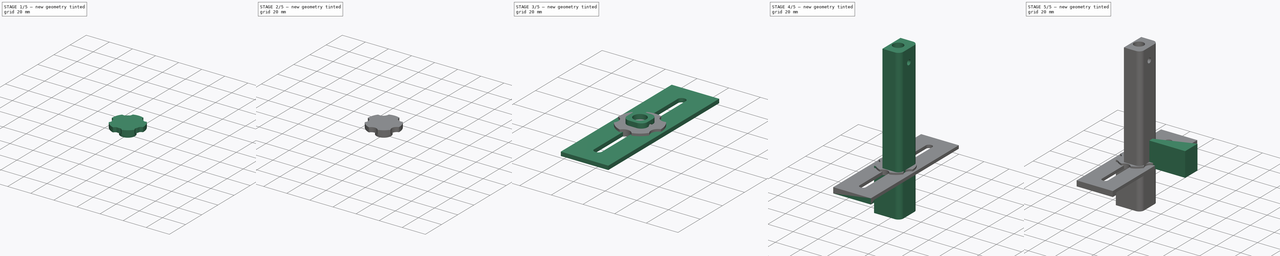
[diagram: build sequence overview — one tinted view per stage of 5, left to right]
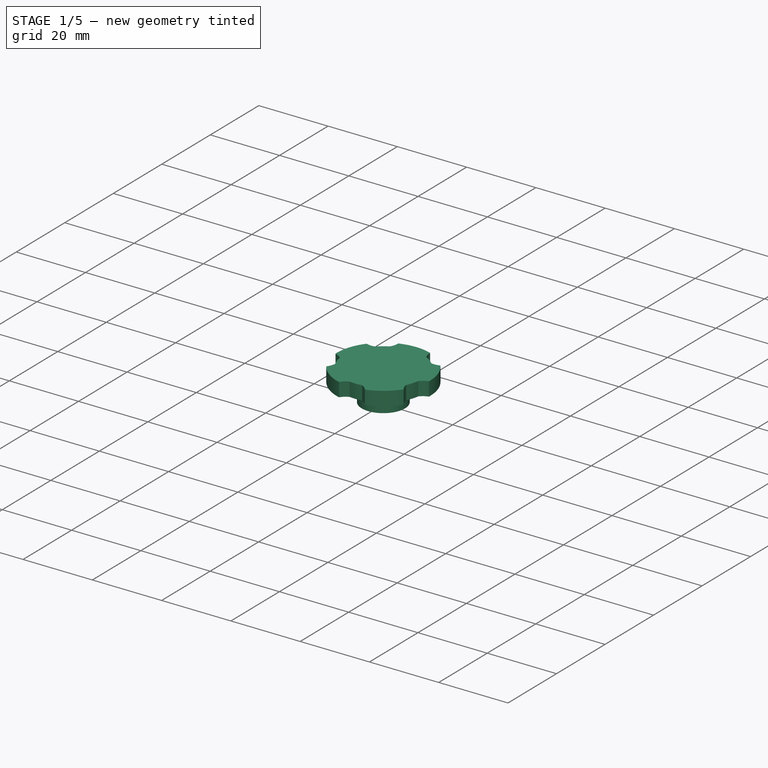
[diagram: stage 1 of 5 — iso view after this stage's code; geometry added in this stage tinted green]
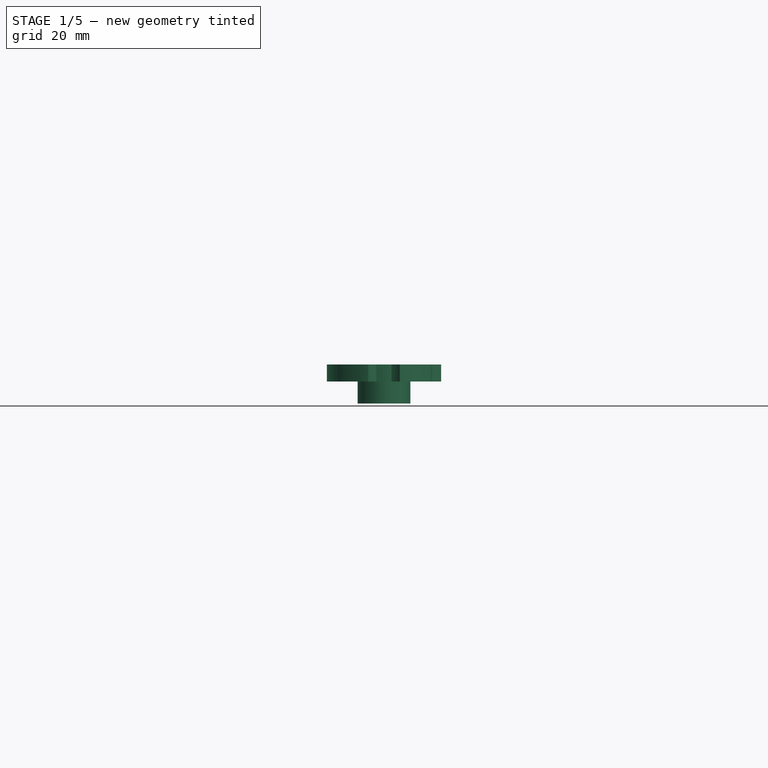
[diagram: stage 1 of 5 — front view after this stage's code; geometry added in this stage tinted green]
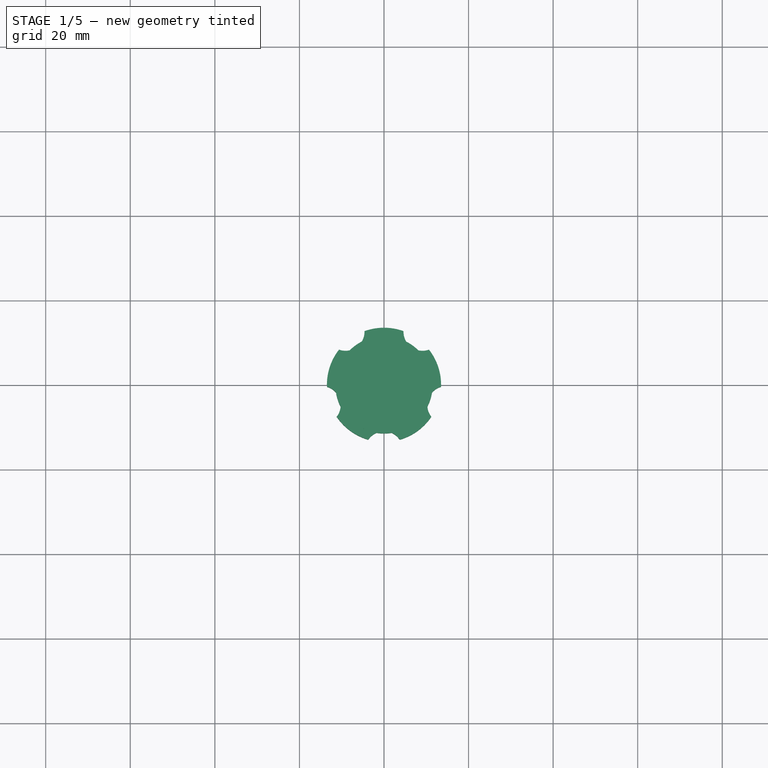
[diagram: stage 1 of 5 — top view after this stage's code; geometry added in this stage tinted green]
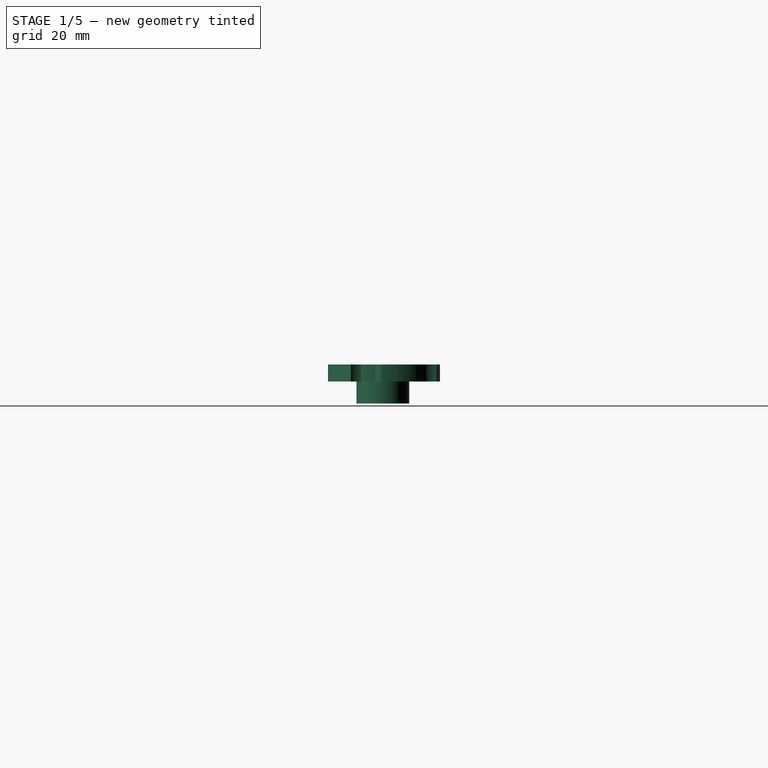
[diagram: stage 1 of 5 — right view after this stage's code; geometry added in this stage tinted green]
FCSTD DOCUMENT  (FreeCAD 1.0R39285 (Git))
Label: Parts
License: All rights reserved
LicenseURL: https://en.wikipedia.org/wiki/All_rights_reserved
objects: Sketcher::SketchObject×27, PartDesign::Pad×16, PartDesign::Pocket×11, PartDesign::Body×9, App::Part×9, PartDesign::PolarPattern×3, PartDesign::Fillet×1
note: 153 computed .brp shape members not serialized (recipe doc carries the construction recipe); baked Part::Feature solids carry a one-line shape summary decoded from their .brp

FEATURE [PartDesign::Body] Body006  label="3mmKnobBody"
  AllowCompound = false
  Group = -> [Sketch015,Pad010,Sketch016,Pad011,Sketch017,Pocket005,Sketch018,Pocket006,PolarPattern]
  Origin = -> Origin013
  Tip = -> PolarPattern
FEATURE [App::Part] Part006  label="3mmKnobPart"
  Group = -> [Body006]
  Origin = -> Origin012
FEATURE [Sketcher::SketchObject] Sketch019
  ArcFitTolerance = 1e-06
  AttachmentSupport = -> [XY_Plane015]
  FullyConstrained = true
  MakeInternals = false
  MapMode = 5
  sketch-geometry (1):
    g0: Circle CenterX=0 CenterY=0 CenterZ=0 NormalX=0 NormalY=0 NormalZ=1 AngleXU=0 Radius=11.5
  constraints (2):
    c: Diameter(g0) = 23
    c: Coincident(g0,g-1)
FEATURE [PartDesign::Pad] Pad012  label="MainPad005"
  Direction = (0,0,1)
  Length = 4
  Length2 = 10
  Profile = -> Sketch019
  ReferenceAxis = -> Sketch019 [N_Axis]
  Refine = true
  Suppressed = false
  Type = 0
FEATURE [PartDesign::Body] Body007  label="4mmKnobBody"
  AllowCompound = false
  Group = -> [Sketch019,Pad012,Sketch020,Pad013,Sketch021,Pocket007,Sketch022,Pocket008,PolarPattern001]
  Origin = -> Origin015
  Tip = -> PolarPattern001
FEATURE [App::Part] Part007  label="4mmKnobPart"
  Group = -> [Body007]
  Origin = -> Origin014
FEATURE [Sketcher::SketchObject] Sketch023
  ArcFitTolerance = 1e-06
  AttachmentSupport = -> [XY_Plane017]
  FullyConstrained = true
  MakeInternals = false
  MapMode = 5
  sketch-geometry (1):
    g0: Circle CenterX=0 CenterY=0 CenterZ=0 NormalX=0 NormalY=0 NormalZ=1 AngleXU=0 Radius=13.5
  constraints (2):
    c: Diameter(g0) = 27
    c: Coincident(g0,g-1)
FEATURE [PartDesign::Pad] Pad014  label="MainPad006"
  Direction = (0,0,1)
  Length = 4
  Length2 = 10
  Profile = -> Sketch023
  ReferenceAxis = -> Sketch023 [N_Axis]
  Refine = true
  Suppressed = false
  Type = 0
FEATURE [Sketcher::SketchObject] Sketch024
  ArcFitTolerance = 1e-06
  AttachmentSupport = -> [Pad014]
  FullyConstrained = true
  MakeInternals = false
  MapMode = 5
  Placement = pos=(0,0,0) rot=(1,0,0;3.14159rad)
  sketch-geometry (1):
    g0: Circle CenterX=0 CenterY=0 CenterZ=0 NormalX=0 NormalY=0 NormalZ=1 AngleXU=0 Radius=6.245
  constraints (2):
    c: Diameter(g0) = 12.49
    c: Coincident(g0,g-1)
FEATURE [PartDesign::Pad] Pad015  label="ScrewPad002"
  BaseFeature = -> Pad014
  Direction = (0,0,-1)
  Length = 5.2
  Length2 = 10
  Profile = -> Sketch024
  ReferenceAxis = -> Sketch024 [N_Axis]
  Refine = true
  Suppressed = false
  Type = 0
FEATURE [Sketcher::SketchObject] Sketch025
  ArcFitTolerance = 1e-06
  AttachmentSupport = -> [Pad015]
  FullyConstrained = true
  MakeInternals = false
  MapMode = 5
  Placement = pos=(0,0,-5.2) rot=(1,0,0;3.14159rad)
  sketch-geometry (1):
    g0: Circle CenterX=0 CenterY=0 CenterZ=0 NormalX=0 NormalY=0 NormalZ=1 AngleXU=0 Radius=3.3
  constraints (2):
    c: Diameter(g0) = 6.6
    c: Coincident(g0,g-1)
FEATURE [PartDesign::Pocket] Pocket009  label="ScrewHeadPocket002"
  BaseFeature = -> Pad015
  Direction = (0,0,1)
  Length = 5.2
  Length2 = 5
  Profile = -> Sketch025
  ReferenceAxis = -> Sketch025 [N_Axis]
  Refine = true
  Suppressed = false
  Type = 0
FEATURE [Sketcher::SketchObject] Sketch026
  ArcFitTolerance = 1e-06
  AttachmentSupport = -> [Pocket009]
  FullyConstrained = true
  MakeInternals = false
  MapMode = 5
  Placement = pos=(0,0,0) rot=(1,0,0;3.14159rad)
  sketch-geometry (1):
    g0: Circle CenterX=0 CenterY=15.5 CenterZ=0 NormalX=0 NormalY=0 NormalZ=1 AngleXU=0 Radius=4.5
  constraints (3):
    c: Diameter(g0) = 9
    c: PointOnObject(g0,g-2)
    c: DistanceY(g-1,g0) = 15.5
FEATURE [PartDesign::Pocket] Pocket010  label="EdgePocket002"
  BaseFeature = -> Pocket009
  Direction = (0,0,1)
  Length = 5
  Length2 = 5
  Profile = -> Sketch026
  ReferenceAxis = -> Sketch026 [N_Axis]
  Refine = true
  Suppressed = false
  Type = 1
FEATURE [PartDesign::PolarPattern] PolarPattern002
  Angle = 360
  Axis = -> Sketch026 [N_Axis]
  BaseFeature = -> Pocket010
  Mode = 0
  Occurrences = 5
  Offset = 120
  Originals = -> [Pocket010]
  Refine = true
  Suppressed = false
  TransformMode = 0
FEATURE [PartDesign::Body] Body008  label="5mmKnobBody"
  AllowCompound = false
  Group = -> [Sketch023,Pad014,Sketch024,Pad015,Sketch025,Pocket009,Sketch026,Pocket010,PolarPattern002]
  Origin = -> Origin017
  Tip = -> PolarPattern002
FEATURE [App::Part] Part008  label="5mmKnobPart"
  Group = -> [Body008]
  Origin = -> Origin016
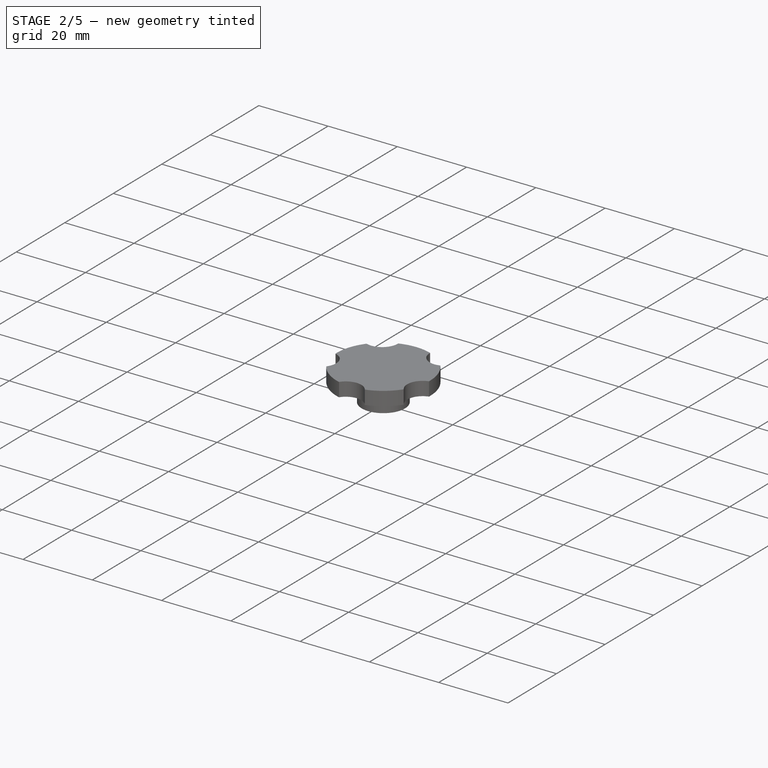
[diagram: stage 2 of 5 — iso view after this stage's code; geometry added in this stage tinted green]
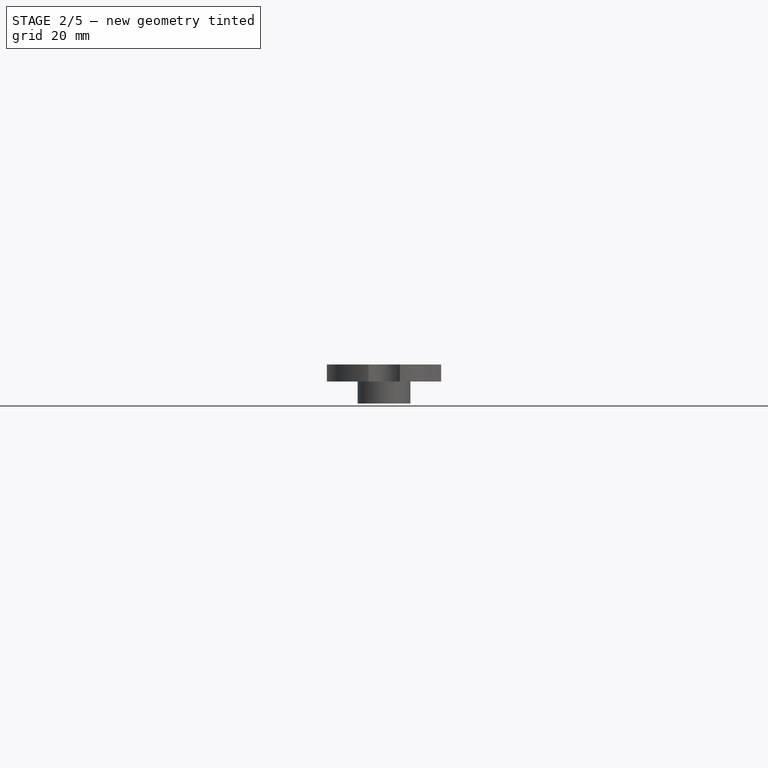
[diagram: stage 2 of 5 — front view after this stage's code; geometry added in this stage tinted green]
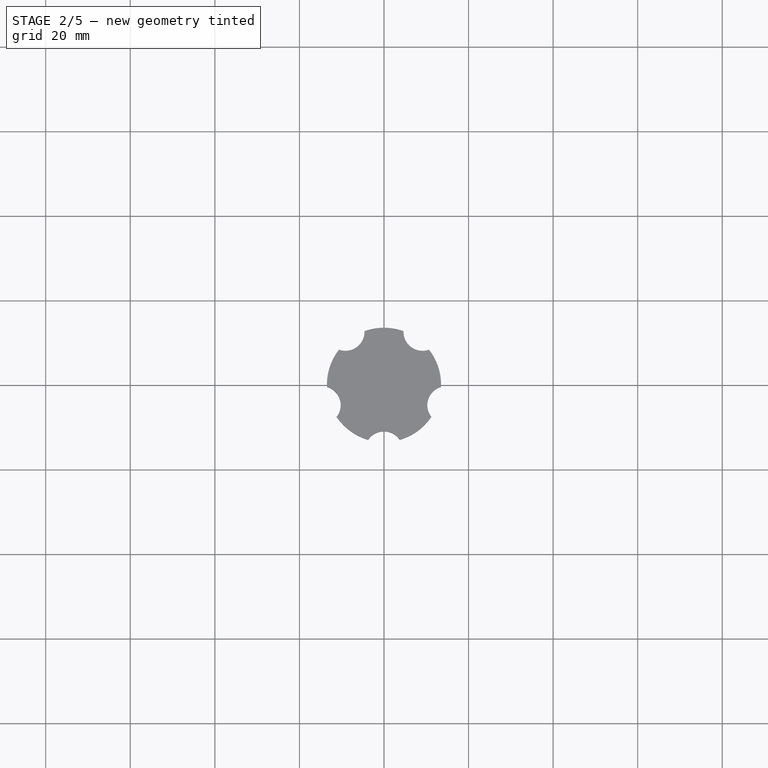
[diagram: stage 2 of 5 — top view after this stage's code; geometry added in this stage tinted green]
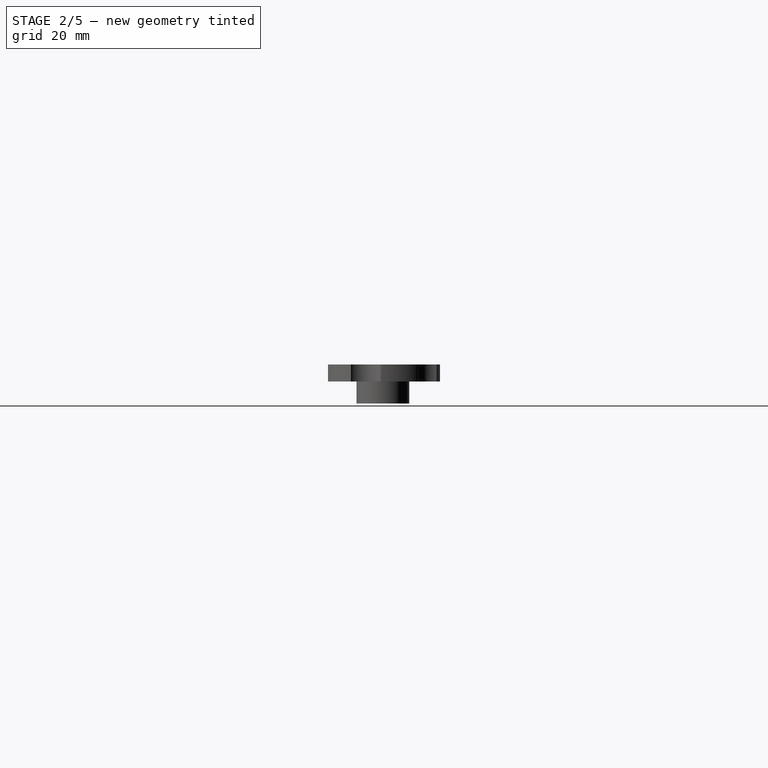
[diagram: stage 2 of 5 — right view after this stage's code; geometry added in this stage tinted green]
FEATURE [PartDesign::Body] Body005  label="EndBlockkBody"
  AllowCompound = false
  Group = -> [Sketch013,Pad009,Sketch014,Pocket004,Fillet]
  Origin = -> Origin011
  Tip = -> Fillet
FEATURE [App::Part] Part005  label="EndBlockPart"
  Group = -> [Body005]
  Origin = -> Origin010
FEATURE [Sketcher::SketchObject] Sketch015
  ArcFitTolerance = 1e-06
  AttachmentSupport = -> [XY_Plane013]
  FullyConstrained = true
  MakeInternals = false
  MapMode = 5
  sketch-geometry (1):
    g0: Circle CenterX=0 CenterY=0 CenterZ=0 NormalX=0 NormalY=0 NormalZ=1 AngleXU=0 Radius=10.25
  constraints (2):
    c: Diameter(g0) = 20.5
    c: Coincident(g0,g-1)
FEATURE [PartDesign::Pad] Pad010  label="MainPad004"
  Direction = (0,0,1)
  Length = 4
  Length2 = 10
  Profile = -> Sketch015
  ReferenceAxis = -> Sketch015 [N_Axis]
  Refine = true
  Suppressed = false
  Type = 0
FEATURE [Sketcher::SketchObject] Sketch016
  ArcFitTolerance = 1e-06
  AttachmentSupport = -> [Pad010]
  FullyConstrained = true
  MakeInternals = false
  MapMode = 5
  Placement = pos=(0,0,0) rot=(1,0,0;3.14159rad)
  sketch-geometry (1):
    g0: Circle CenterX=0 CenterY=0 CenterZ=0 NormalX=0 NormalY=0 NormalZ=1 AngleXU=0 Radius=4.7
  constraints (2):
    c: Diameter(g0) = 9.4
    c: Coincident(g0,g-1)
FEATURE [PartDesign::Pad] Pad011  label="ScrewPad"
  BaseFeature = -> Pad010
  Direction = (0,0,-1)
  Length = 3.2
  Length2 = 10
  Profile = -> Sketch016
  ReferenceAxis = -> Sketch016 [N_Axis]
  Refine = true
  Suppressed = false
  Type = 0
FEATURE [Sketcher::SketchObject] Sketch020
  ArcFitTolerance = 1e-06
  AttachmentSupport = -> [Pad012]
  FullyConstrained = true
  MakeInternals = false
  MapMode = 5
  Placement = pos=(0,0,0) rot=(1,0,0;3.14159rad)
  sketch-geometry (1):
    g0: Circle CenterX=0 CenterY=0 CenterZ=0 NormalX=0 NormalY=0 NormalZ=1 AngleXU=0 Radius=5.335
  constraints (2):
    c: Diameter(g0) = 10.67
    c: Coincident(g0,g-1)
FEATURE [PartDesign::Pad] Pad013  label="ScrewPad001"
  BaseFeature = -> Pad012
  Direction = (0,0,-1)
  Length = 5.2
  Length2 = 10
  Profile = -> Sketch020
  ReferenceAxis = -> Sketch020 [N_Axis]
  Refine = true
  Suppressed = false
  Type = 0
FEATURE [Sketcher::SketchObject] Sketch021
  ArcFitTolerance = 1e-06
  AttachmentSupport = -> [Pad013]
  FullyConstrained = true
  MakeInternals = false
  MapMode = 5
  Placement = pos=(0,0,-5.2) rot=(1,0,0;3.14159rad)
  sketch-geometry (1):
    g0: Circle CenterX=0 CenterY=0 CenterZ=0 NormalX=0 NormalY=0 NormalZ=1 AngleXU=0 Radius=3.3
  constraints (2):
    c: Diameter(g0) = 6.6
    c: Coincident(g0,g-1)
FEATURE [PartDesign::Pocket] Pocket007  label="ScrewHeadPocket001"
  BaseFeature = -> Pad013
  Direction = (0,0,1)
  Length = 5.2
  Length2 = 5
  Profile = -> Sketch021
  ReferenceAxis = -> Sketch021 [N_Axis]
  Refine = true
  Suppressed = false
  Type = 0
FEATURE [Sketcher::SketchObject] Sketch022
  ArcFitTolerance = 1e-06
  AttachmentSupport = -> [Pocket007]
  FullyConstrained = true
  MakeInternals = false
  MapMode = 5
  Placement = pos=(0,0,0) rot=(1,0,0;3.14159rad)
  sketch-geometry (1):
    g0: Circle CenterX=0 CenterY=14 CenterZ=0 NormalX=0 NormalY=0 NormalZ=1 AngleXU=0 Radius=4.5
  constraints (3):
    c: Diameter(g0) = 9
    c: PointOnObject(g0,g-2)
    c: DistanceY(g-1,g0) = 14
FEATURE [PartDesign::Pocket] Pocket008  label="EdgePocket001"
  BaseFeature = -> Pocket007
  Direction = (0,0,1)
  Length = 5
  Length2 = 5
  Profile = -> Sketch022
  ReferenceAxis = -> Sketch022 [N_Axis]
  Refine = true
  Suppressed = false
  Type = 1
FEATURE [PartDesign::PolarPattern] PolarPattern001
  Angle = 360
  Axis = -> Sketch022 [N_Axis]
  BaseFeature = -> Pocket008
  Mode = 0
  Occurrences = 5
  Offset = 120
  Originals = -> [Pocket008]
  Refine = true
  Suppressed = false
  TransformMode = 0
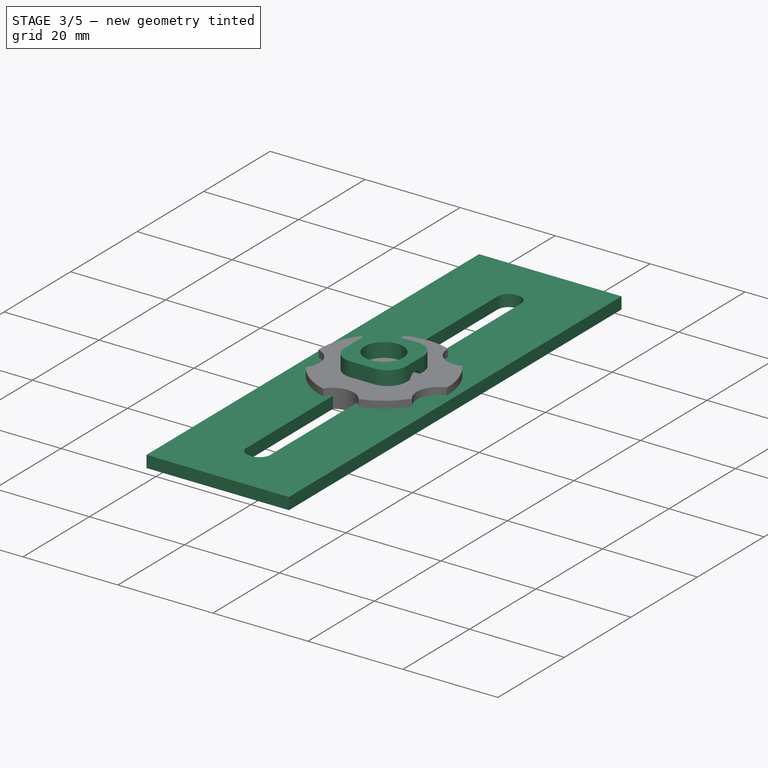
[diagram: stage 3 of 5 — iso view after this stage's code; geometry added in this stage tinted green]
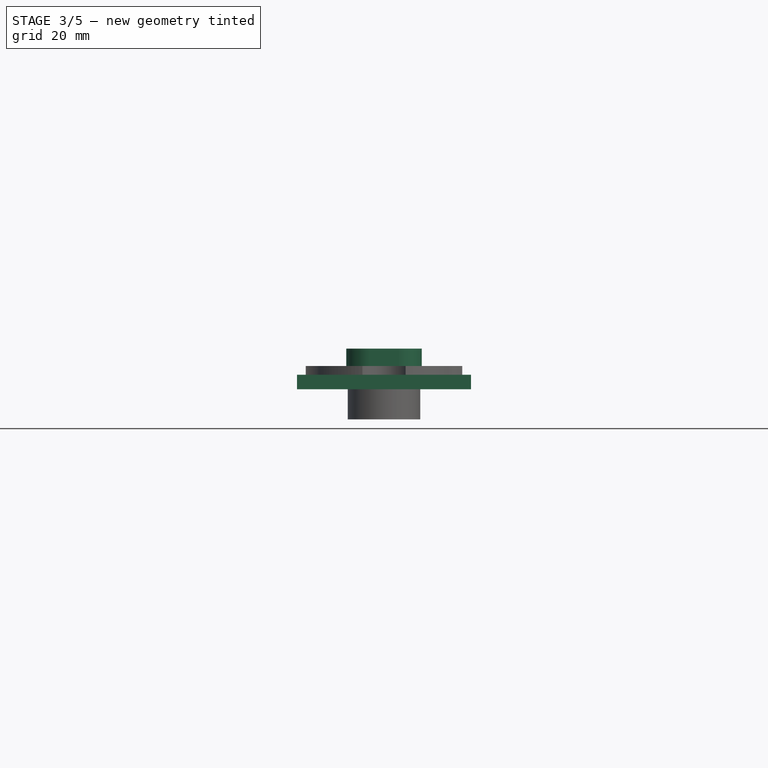
[diagram: stage 3 of 5 — front view after this stage's code; geometry added in this stage tinted green]
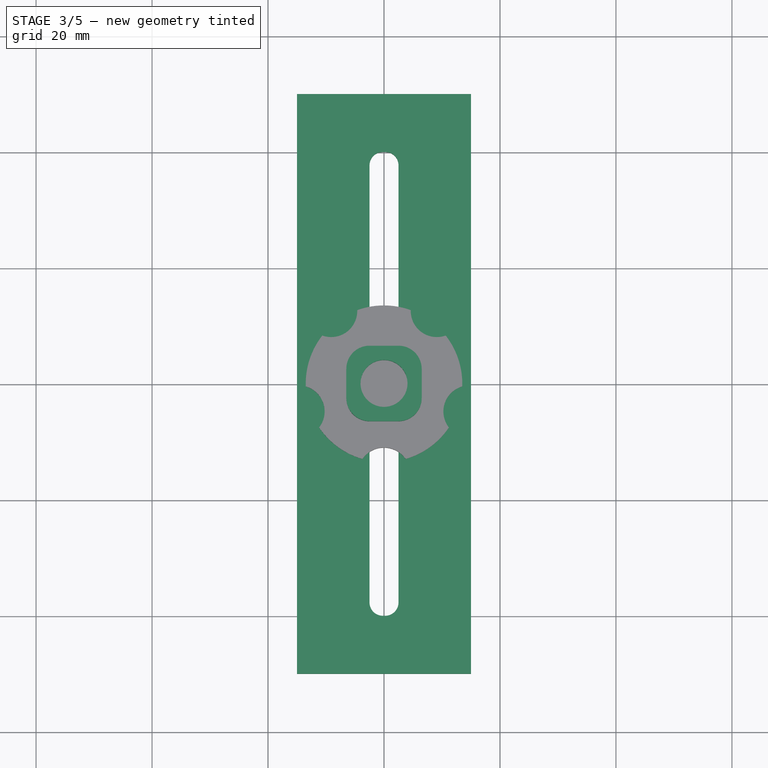
[diagram: stage 3 of 5 — top view after this stage's code; geometry added in this stage tinted green]
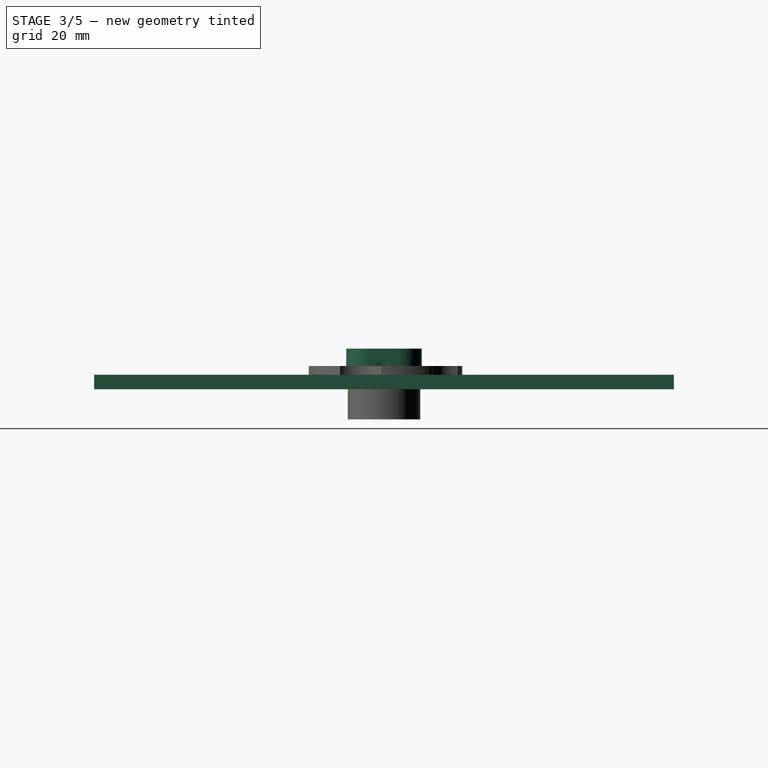
[diagram: stage 3 of 5 — right view after this stage's code; geometry added in this stage tinted green]
FEATURE [PartDesign::Body] Body003  label="HolderEndBody"
  AllowCompound = false
  Group = -> [Sketch006,Pad004,Sketch007,Pocket002,Sketch008,Pad005,Sketch009,Pocket003,Sketch010,Pad006]
  Origin = -> Origin007
  Tip = -> Pad006
FEATURE [App::Part] Part003  label="HolderEndPart"
  Group = -> [Body003]
  Origin = -> Origin006
FEATURE [Sketcher::SketchObject] Sketch011
  ArcFitTolerance = 1e-06
  AttachmentSupport = -> [XY_Plane009]
  FullyConstrained = true
  MakeInternals = false
  MapMode = 5
  sketch-geometry (16):
    g0: LineSegment StartX=-15 StartY=50 StartZ=0 EndX=-15 EndY=-50 EndZ=0
    g1: LineSegment StartX=-15 StartY=-50 StartZ=0 EndX=15 EndY=-50 EndZ=0
    g2: LineSegment StartX=15 StartY=-50 StartZ=0 EndX=15 EndY=50 EndZ=0
    g3: LineSegment StartX=15 StartY=50 StartZ=0 EndX=-15 EndY=50 EndZ=0
    g4: LineSegment StartX=-2.5 StartY=37.7 StartZ=0 EndX=-2.5 EndY=-37.7 EndZ=0
    g5: LineSegment StartX=-0.2 StartY=-40 StartZ=0 EndX=0.2 EndY=-40 EndZ=0
    g6: LineSegment StartX=2.5 StartY=-37.7 StartZ=0 EndX=2.5 EndY=37.7 EndZ=0
    g7: LineSegment StartX=0.2 StartY=40 StartZ=0 EndX=-0.2 EndY=40 EndZ=0
    g8: ArcOfCircle CenterX=0.2 CenterY=37.7 CenterZ=0 NormalX=0 NormalY=0 NormalZ=1 AngleXU=0 Radius=2.3 StartAngle=9e-16 EndAngle=1.5708
    g9: GeomPoint [constr] X=2.5 Y=40 Z=0
    g10: ArcOfCircle CenterX=-0.2 CenterY=37.7 CenterZ=0 NormalX=0 NormalY=0 NormalZ=1 AngleXU=0 Radius=2.3 StartAngle=1.5708 EndAngle=3.14159
    g11: GeomPoint [constr] X=-2.5 Y=40 Z=0
    g12: ArcOfCircle CenterX=-0.2 CenterY=-37.7 CenterZ=0 NormalX=0 NormalY=0 NormalZ=1 AngleXU=0 Radius=2.3 StartAngle=3.14159 EndAngle=4.71239
    g13: GeomPoint [constr] X=-2.5 Y=-40 Z=0
    g14: ArcOfCircle CenterX=0.2 CenterY=-37.7 CenterZ=0 NormalX=0 NormalY=0 NormalZ=1 AngleXU=0 Radius=2.3 StartAngle=4.71239 EndAngle=6.28319
    g15: GeomPoint [constr] X=2.5 Y=-40 Z=0
  constraints (38):
    c: Coincident(g0,g1)
    c: Coincident(g1,g2)
    c: Coincident(g2,g3)
    c: Coincident(g3,g0)
    c: Vertical(g0)
    c: Vertical(g2)
    c: Horizontal(g1)
    c: Horizontal(g3)
    c: Distance(g0,g2) = 30
    c: Distance(g1,g3) = 100
    c: Symmetric(g2,g0,g-1)
    c: Vertical(g4)
    c: Vertical(g6)
    c: Horizontal(g5)
    c: Horizontal(g7)
    c: Distance(g11,g9) = 5
    c: Distance(g13,g11) = 80
    c: Symmetric(g9,g13,g-1)
    c: PointOnObject(g9,g7)
    c: PointOnObject(g9,g6)
    c: Tangent(g7,g8) = -1.5708
    c: Tangent(g6,g8) = -1.5708
    c: PointOnObject(g11,g7)
    c: PointOnObject(g11,g4)
    c: Tangent(g7,g10) = -1.5708
    c: Tangent(g4,g10) = -1.5708
    c: PointOnObject(g13,g4)
    c: PointOnObject(g13,g5)
    c: Tangent(g4,g12) = -1.5708
    c: Tangent(g5,g12) = -1.5708
    c: PointOnObject(g15,g6)
    c: PointOnObject(g15,g5)
    c: Tangent(g6,g14) = -1.5708
    c: Tangent(g5,g14) = -1.5708
    c: Radius(g10) = 2.3
    c: Radius(g8) = 2.3
    c: Radius(g12) = 2.3
    c: Radius(g14) = 2.3
FEATURE [PartDesign::Pad] Pad007  label="MainPad002"
  Direction = (0,0,1)
  Length = 2.5
  Length2 = 10
  Profile = -> Sketch011
  ReferenceAxis = -> Sketch011 [N_Axis]
  Refine = true
  Suppressed = false
  Type = 0
FEATURE [PartDesign::Body] Body004  label="KnifeBinderBody"
  AllowCompound = false
  Group = -> [Sketch011,Pad007,Sketch012,Pad008]
  Origin = -> Origin009
  Tip = -> Pad008
FEATURE [App::Part] Part004  label="KnifeBinderPart"
  Group = -> [Body004]
  Origin = -> Origin008
FEATURE [Sketcher::SketchObject] Sketch013
  ArcFitTolerance = 1e-06
  AttachmentSupport = -> [XY_Plane011]
  FullyConstrained = true
  MakeInternals = false
  MapMode = 5
  sketch-geometry (5):
    g0: Circle CenterX=0 CenterY=0 CenterZ=0 NormalX=0 NormalY=0 NormalZ=1 AngleXU=0 Radius=4.05
    g1: LineSegment StartX=-6.5 StartY=6.5 StartZ=0 EndX=-6.5 EndY=-6.5 EndZ=0
    g2: LineSegment StartX=-6.5 StartY=-6.5 StartZ=0 EndX=6.5 EndY=-6.5 EndZ=0
    g3: LineSegment StartX=6.5 StartY=-6.5 StartZ=0 EndX=6.5 EndY=6.5 EndZ=0
    g4: LineSegment StartX=6.5 StartY=6.5 StartZ=0 EndX=-6.5 EndY=6.5 EndZ=0
  constraints (13):
    c: Diameter(g0) = 8.1
    c: Coincident(g0,g-1)
    c: Coincident(g1,g2)
    c: Coincident(g2,g3)
    c: Coincident(g3,g4)
    c: Coincident(g4,g1)
    c: Vertical(g1)
    c: Vertical(g3)
    c: Horizontal(g2)
    c: Horizontal(g4)
    c: Distance(g1,g3) = 13
    c: Distance(g2,g4) = 13
    c: Symmetric(g3,g1,g0)
FEATURE [PartDesign::Pad] Pad009  label="MainPad003"
  Direction = (0,0,1)
  Length = 7
  Length2 = 10
  Profile = -> Sketch013
  ReferenceAxis = -> Sketch013 [N_Axis]
  Refine = true
  Suppressed = false
  Type = 0
FEATURE [Sketcher::SketchObject] Sketch014
  ArcFitTolerance = 1e-06
  AttachmentSupport = -> [Pad009]
  FullyConstrained = true
  MakeInternals = false
  MapMode = 5
  Placement = pos=(6.5,0,0) rot=(0.57735,0.57735,0.57735;2.0944rad)
  sketch-geometry (1):
    g0: Circle CenterX=0 CenterY=3.5 CenterZ=0 NormalX=0 NormalY=0 NormalZ=1 AngleXU=0 Radius=1.555
  constraints (3):
    c: Diameter(g0) = 3.11
    c: PointOnObject(g0,g-2)
    c: DistanceY(g-1,g0) = 3.5
FEATURE [PartDesign::Pocket] Pocket004
  BaseFeature = -> Pad009
  Direction = (-1,0,0)
  Length = 5
  Length2 = 5
  Profile = -> Sketch014
  ReferenceAxis = -> Sketch014 [N_Axis]
  Refine = true
  Suppressed = false
  Type = 0
FEATURE [PartDesign::Fillet] Fillet
  Base = -> Pocket004 [Edge5,Edge8,Edge2,Edge1]
  BaseFeature = -> Pocket004
  Radius = 4
  Refine = true
  SupportTransform = false
  Suppressed = false
  UseAllEdges = false
FEATURE [Sketcher::SketchObject] Sketch017
  ArcFitTolerance = 1e-06
  AttachmentSupport = -> [Pad011]
  FullyConstrained = true
  MakeInternals = false
  MapMode = 5
  Placement = pos=(0,0,-3.2) rot=(1,0,0;3.14159rad)
  sketch-geometry (1):
    g0: Circle CenterX=0 CenterY=0 CenterZ=0 NormalX=0 NormalY=0 NormalZ=1 AngleXU=0 Radius=2.695
  constraints (2):
    c: Diameter(g0) = 5.39
    c: Coincident(g0,g-1)
FEATURE [PartDesign::Pocket] Pocket005  label="ScrewHeadPocket"
  BaseFeature = -> Pad011
  Direction = (0,0,1)
  Length = 3.2
  Length2 = 5
  Profile = -> Sketch017
  ReferenceAxis = -> Sketch017 [N_Axis]
  Refine = true
  Suppressed = false
  Type = 0
FEATURE [Sketcher::SketchObject] Sketch018
  ArcFitTolerance = 1e-06
  AttachmentSupport = -> [Pocket005]
  FullyConstrained = true
  MakeInternals = false
  MapMode = 5
  Placement = pos=(0,0,0) rot=(1,0,0;3.14159rad)
  sketch-geometry (1):
    g0: Circle CenterX=0 CenterY=13 CenterZ=0 NormalX=0 NormalY=0 NormalZ=1 AngleXU=0 Radius=4.5
  constraints (3):
    c: Diameter(g0) = 9
    c: PointOnObject(g0,g-2)
    c: DistanceY(g-1,g0) = 13
FEATURE [PartDesign::Pocket] Pocket006  label="EdgePocket"
  BaseFeature = -> Pocket005
  Direction = (0,0,1)
  Length = 5
  Length2 = 5
  Profile = -> Sketch018
  ReferenceAxis = -> Sketch018 [N_Axis]
  Refine = true
  Suppressed = false
  Type = 1
FEATURE [PartDesign::PolarPattern] PolarPattern
  Angle = 360
  Axis = -> Sketch018 [N_Axis]
  BaseFeature = -> Pocket006
  Mode = 0
  Occurrences = 5
  Offset = 120
  Originals = -> [Pocket006]
  Refine = true
  Suppressed = false
  TransformMode = 0
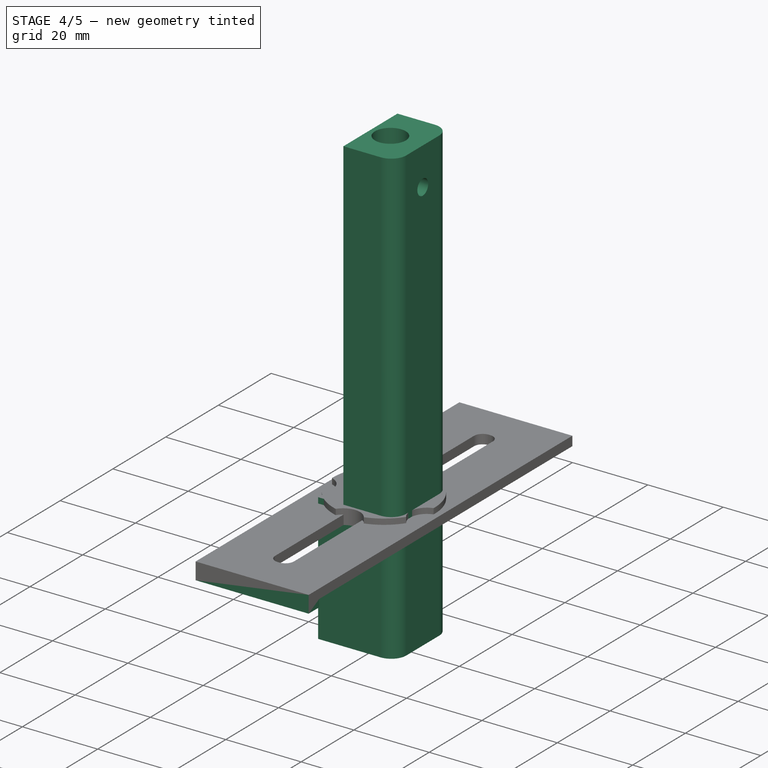
[diagram: stage 4 of 5 — iso view after this stage's code; geometry added in this stage tinted green]
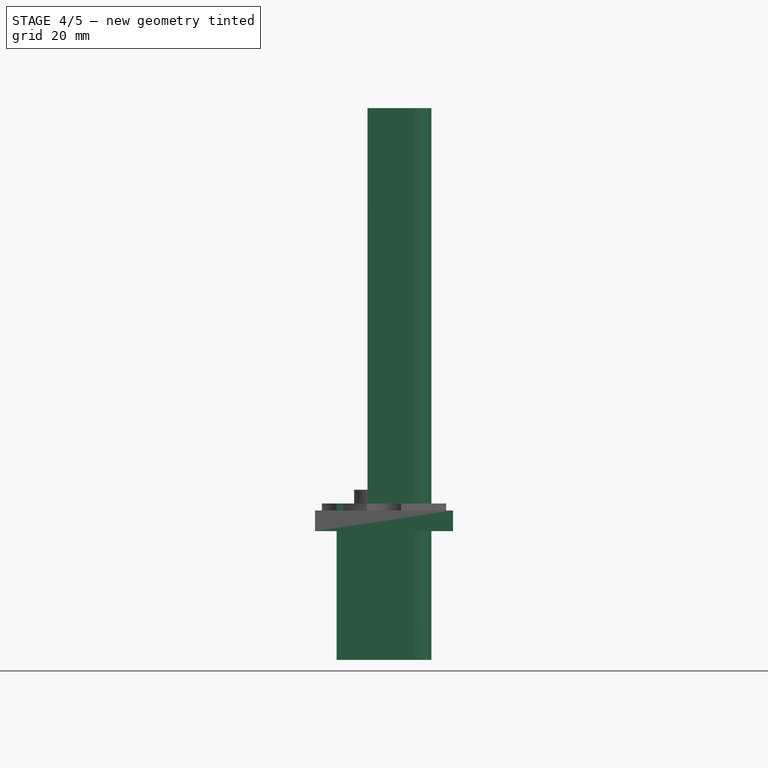
[diagram: stage 4 of 5 — front view after this stage's code; geometry added in this stage tinted green]
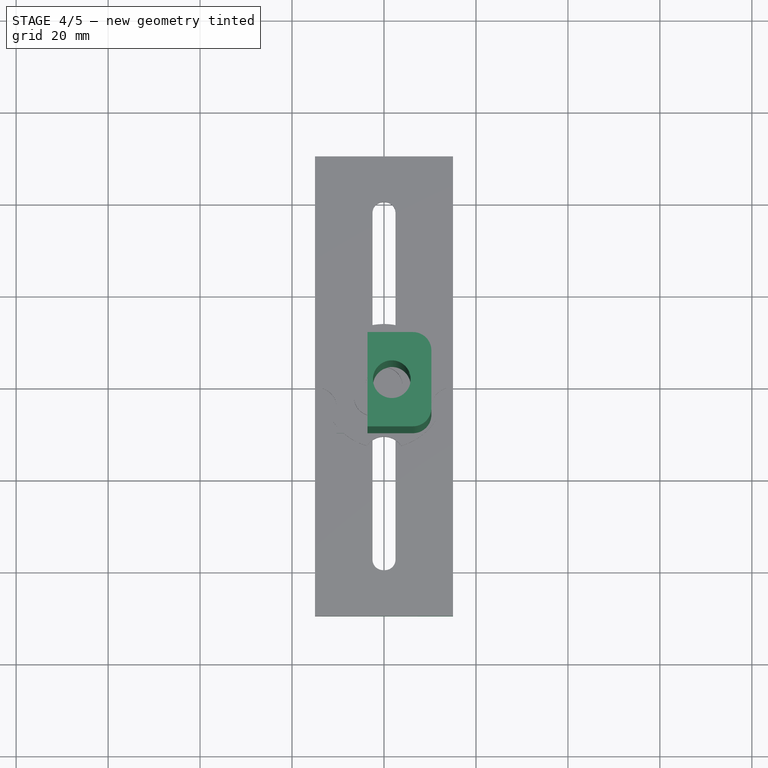
[diagram: stage 4 of 5 — top view after this stage's code; geometry added in this stage tinted green]
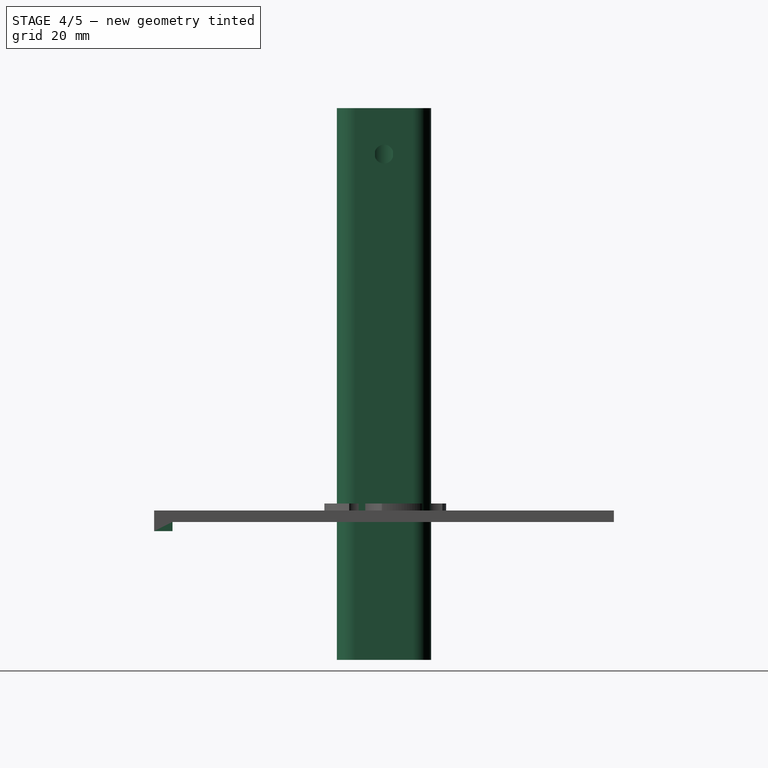
[diagram: stage 4 of 5 — right view after this stage's code; geometry added in this stage tinted green]
FEATURE [PartDesign::Body] Body002  label="HolderShaftBody"
  AllowCompound = false
  Group = -> [Sketch002,Pad002,Sketch003,Pocket,Sketch004,Pad003,Sketch005,Pocket001]
  Origin = -> Origin005
  Tip = -> Pocket001
FEATURE [App::Part] Part002  label="HolderShaftPart"
  Group = -> [Body002]
  Origin = -> Origin004
FEATURE [Sketcher::SketchObject] Sketch006
  ArcFitTolerance = 1e-06
  AttachmentSupport = -> [XY_Plane007]
  FullyConstrained = true
  MakeInternals = false
  MapMode = 5
  sketch-geometry (9):
    g0: LineSegment StartX=-10.3 StartY=10.25 StartZ=0 EndX=-10.3 EndY=-10.25 EndZ=0
    g1: LineSegment StartX=-10.3 StartY=-10.25 StartZ=0 EndX=6.3 EndY=-10.25 EndZ=0
    g2: LineSegment StartX=10.3 StartY=-6.25 StartZ=0 EndX=10.3 EndY=6.25 EndZ=0
    g3: LineSegment StartX=6.3 StartY=10.25 StartZ=0 EndX=-10.3 EndY=10.25 EndZ=0
    g4: Circle CenterX=1.7 CenterY=0 CenterZ=0 NormalX=0 NormalY=0 NormalZ=1 AngleXU=0 Radius=4.1
    g5: ArcOfCircle CenterX=6.3 CenterY=6.25 CenterZ=0 NormalX=0 NormalY=0 NormalZ=1 AngleXU=0 Radius=4 StartAngle=0 EndAngle=1.5708
    g6: GeomPoint [constr] X=10.3 Y=10.25 Z=0
    g7: ArcOfCircle CenterX=6.3 CenterY=-6.25 CenterZ=0 NormalX=0 NormalY=0 NormalZ=1 AngleXU=0 Radius=4 StartAngle=4.71239 EndAngle=6.28319
    g8: GeomPoint [constr] X=10.3 Y=-10.25 Z=0
  constraints (22):
    c: Coincident(g0,g1)
    c: Coincident(g3,g0)
    c: Vertical(g0)
    c: Vertical(g2)
    c: Horizontal(g1)
    c: Horizontal(g3)
    c: Distance(g0,g6) = 20.6
    c: Distance(g1,g3) = 20.5
    c: Symmetric(g6,g0,g-1)
    c: Diameter(g4) = 8.2
    c: PointOnObject(g4,g-1)
    c: DistanceX(g4,g8) = 8.6
    c: PointOnObject(g6,g3)
    c: PointOnObject(g6,g2)
    c: Tangent(g3,g5) = -1.5708
    c: Tangent(g2,g5) = -1.5708
    c: PointOnObject(g8,g2)
    c: PointOnObject(g8,g1)
    c: Tangent(g2,g7) = -1.5708
    c: Tangent(g1,g7) = -1.5708
    c: Radius(g5) = 4
    c: Radius(g7) = 4
FEATURE [PartDesign::Pad] Pad004  label="MainPad001"
  Direction = (0,0,1)
  Length = 90
  Length2 = 10
  Profile = -> Sketch006
  ReferenceAxis = -> Sketch006 [N_Axis]
  Refine = true
  Suppressed = false
  Type = 0
FEATURE [Sketcher::SketchObject] Sketch007
  ArcFitTolerance = 1e-06
  AttachmentSupport = -> [Pad004]
  FullyConstrained = true
  MakeInternals = false
  MapMode = 5
  Placement = pos=(0,0,90) rot=(0,0,1;0rad)
  sketch-geometry (4):
    g0: LineSegment StartX=-10.3 StartY=10.25 StartZ=0 EndX=-10.3 EndY=-10.25 EndZ=0
    g1: LineSegment StartX=-10.3 StartY=-10.25 StartZ=0 EndX=-3.6 EndY=-10.25 EndZ=0
    g2: LineSegment StartX=-3.6 StartY=-10.25 StartZ=0 EndX=-3.6 EndY=10.25 EndZ=0
    g3: LineSegment StartX=-3.6 StartY=10.25 StartZ=0 EndX=-10.3 EndY=10.25 EndZ=0
  constraints (12):
    c: Coincident(g0,g1)
    c: Coincident(g1,g2)
    c: Coincident(g2,g3)
    c: Coincident(g3,g0)
    c: Vertical(g0)
    c: Vertical(g2)
    c: Horizontal(g1)
    c: Horizontal(g3)
    c: Distance(g0,g2) = 6.7
    c: Distance(g1,g3) = 20.5
    c: DistanceY(g-1,g2) = 10.25
    c: DistanceX(g0,g-1) = 10.3
FEATURE [PartDesign::Pocket] Pocket002  label="GiantPocket001"
  BaseFeature = -> Pad004
  Direction = (0,0,-1)
  Length = 88
  Length2 = 5
  Profile = -> Sketch007
  ReferenceAxis = -> Sketch007 [N_Axis]
  Refine = true
  Suppressed = false
  Type = 0
FEATURE [Sketcher::SketchObject] Sketch008
  ArcFitTolerance = 1e-06
  AttachmentSupport = -> [Pocket002]
  FullyConstrained = true
  MakeInternals = false
  MapMode = 5
  Placement = pos=(0,0,2) rot=(0,0,1;0rad)
  sketch-geometry (4):
    g0: LineSegment StartX=-10.3 StartY=10.25 StartZ=0 EndX=-10.3 EndY=-10.25 EndZ=0
    g1: LineSegment StartX=-10.3 StartY=-10.25 StartZ=0 EndX=-8.8 EndY=-10.25 EndZ=0
    g2: LineSegment StartX=-8.8 StartY=-10.25 StartZ=0 EndX=-8.8 EndY=10.25 EndZ=0
    g3: LineSegment StartX=-8.8 StartY=10.25 StartZ=0 EndX=-10.3 EndY=10.25 EndZ=0
  constraints (12):
    c: Coincident(g0,g1)
    c: Coincident(g1,g2)
    c: Coincident(g2,g3)
    c: Coincident(g3,g0)
    c: Vertical(g0)
    c: Vertical(g2)
    c: Horizontal(g1)
    c: Horizontal(g3)
    c: Distance(g0,g2) = 1.5
    c: Distance(g1,g3) = 20.5
    c: DistanceY(g-1,g2) = 10.25
    c: DistanceX(g0,g-1) = 10.3
FEATURE [PartDesign::Pad] Pad005  label="LipPad001"
  BaseFeature = -> Pocket002
  Direction = (0,0,1)
  Length = 2
  Length2 = 10
  Profile = -> Sketch008
  ReferenceAxis = -> Sketch008 [N_Axis]
  Refine = true
  Suppressed = false
  Type = 0
FEATURE [Sketcher::SketchObject] Sketch009
  ArcFitTolerance = 1e-06
  AttachmentSupport = -> [Pad005]
  FullyConstrained = true
  MakeInternals = false
  MapMode = 5
  Placement = pos=(10.3,0,0) rot=(0.57735,0.57735,0.57735;2.0944rad)
  sketch-geometry (2):
    g0: Circle CenterX=0 CenterY=80 CenterZ=0 NormalX=0 NormalY=0 NormalZ=1 AngleXU=0 Radius=2.05
    g1: Circle CenterX=0 CenterY=80 CenterZ=0 NormalX=0 NormalY=0 NormalZ=1 AngleXU=0 Radius=2.05
  constraints (6):
    c: Diameter(g0) = 4.1
    c: PointOnObject(g0,g-2)
    c: DistanceY(g-1,g0) = 80
    c: Diameter(g1) = 4.1
    c: PointOnObject(g1,g-2)
    c: DistanceY(g-1,g1) = 80
FEATURE [PartDesign::Pocket] Pocket003  label="ScrewPocket001"
  BaseFeature = -> Pad005
  Direction = (-1,0,0)
  Length = 5
  Length2 = 5
  Profile = -> Sketch009
  ReferenceAxis = -> Sketch009 [N_Axis]
  Refine = true
  Suppressed = false
  Type = 0
FEATURE [Sketcher::SketchObject] Sketch010
  ArcFitTolerance = 1e-06
  AttachmentSupport = -> [Pocket003]
  FullyConstrained = true
  MakeInternals = false
  MapMode = 5
  Placement = pos=(0,0,0) rot=(1,0,0;3.14159rad)
  sketch-geometry (8):
    g0: LineSegment StartX=-10.3 StartY=10.25 StartZ=0 EndX=-10.3 EndY=-10.25 EndZ=0
    g1: LineSegment StartX=-10.3 StartY=-10.25 StartZ=0 EndX=6.3 EndY=-10.25 EndZ=0
    g2: LineSegment StartX=10.3 StartY=-6.25 StartZ=0 EndX=10.3 EndY=6.25 EndZ=0
    g3: LineSegment StartX=6.3 StartY=10.25 StartZ=0 EndX=-10.3 EndY=10.25 EndZ=0
    g4: ArcOfCircle CenterX=6.3 CenterY=6.25 CenterZ=0 NormalX=0 NormalY=0 NormalZ=1 AngleXU=0 Radius=4 StartAngle=0 EndAngle=1.5708
    g5: GeomPoint [constr] X=10.3 Y=10.25 Z=0
    g6: ArcOfCircle CenterX=6.3 CenterY=-6.25 CenterZ=0 NormalX=0 NormalY=0 NormalZ=1 AngleXU=0 Radius=4 StartAngle=4.71239 EndAngle=6.28319
    g7: GeomPoint [constr] X=10.3 Y=-10.25 Z=0
  constraints (19):
    c: Coincident(g0,g1)
    c: Coincident(g3,g0)
    c: Vertical(g0)
    c: Vertical(g2)
    c: Horizontal(g1)
    c: Horizontal(g3)
    c: Distance(g0,g5) = 20.6
    c: Distance(g1,g3) = 20.5
    c: Symmetric(g5,g0,g-1)
    c: PointOnObject(g5,g3)
    c: PointOnObject(g5,g2)
    c: Tangent(g3,g4) = -1.5708
    c: Tangent(g2,g4) = -1.5708
    c: PointOnObject(g7,g2)
    c: PointOnObject(g7,g1)
    c: Tangent(g2,g6) = -1.5708
    c: Tangent(g1,g6) = -1.5708
    c: Radius(g4) = 4
    c: Radius(g6) = 4
FEATURE [PartDesign::Pad] Pad006  label="HandlePad"
  BaseFeature = -> Pocket003
  Direction = (0,0,-1)
  Length = 30
  Length2 = 10
  Profile = -> Sketch010
  ReferenceAxis = -> Sketch010 [N_Axis]
  Refine = true
  Suppressed = false
  Type = 0
FEATURE [Sketcher::SketchObject] Sketch012
  ArcFitTolerance = 1e-06
  AttachmentSupport = -> [Pad007]
  FullyConstrained = true
  MakeInternals = false
  MapMode = 5
  Placement = pos=(0,0,0) rot=(1,0,0;3.14159rad)
  sketch-geometry (4):
    g0: LineSegment StartX=-15 StartY=50 StartZ=0 EndX=-15 EndY=46 EndZ=0
    g1: LineSegment StartX=-15 StartY=46 StartZ=0 EndX=15 EndY=46 EndZ=0
    g2: LineSegment StartX=15 StartY=46 StartZ=0 EndX=15 EndY=50 EndZ=0
    g3: LineSegment StartX=15 StartY=50 StartZ=0 EndX=-15 EndY=50 EndZ=0
  constraints (12):
    c: Coincident(g0,g1)
    c: Coincident(g1,g2)
    c: Coincident(g2,g3)
    c: Coincident(g3,g0)
    c: Vertical(g0)
    c: Vertical(g2)
    c: Horizontal(g1)
    c: Horizontal(g3)
    c: Distance(g0,g2) = 30
    c: Distance(g1,g3) = 4
    c: DistanceX(g0,g-1) = 15
    c: DistanceY(g-1,g0) = 50
FEATURE [PartDesign::Pad] Pad008  label="BinderPad"
  BaseFeature = -> Pad007
  Direction = (0,0,-1)
  Length = 2
  Length2 = 10
  Profile = -> Sketch012
  ReferenceAxis = -> Sketch012 [N_Axis]
  Refine = true
  Suppressed = false
  Type = 0
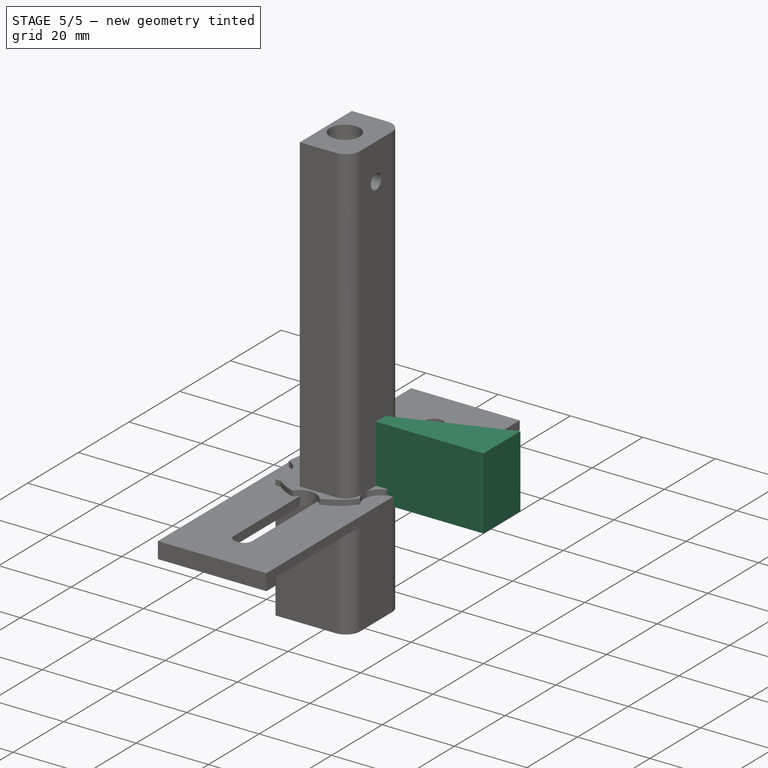
[diagram: stage 5 of 5 — iso view after this stage's code; geometry added in this stage tinted green]
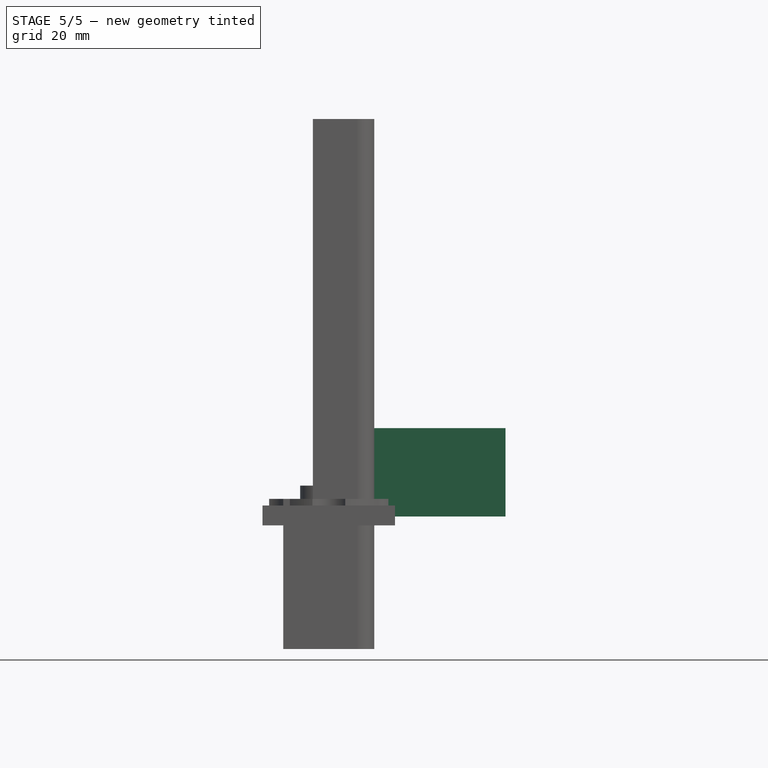
[diagram: stage 5 of 5 — front view after this stage's code; geometry added in this stage tinted green]
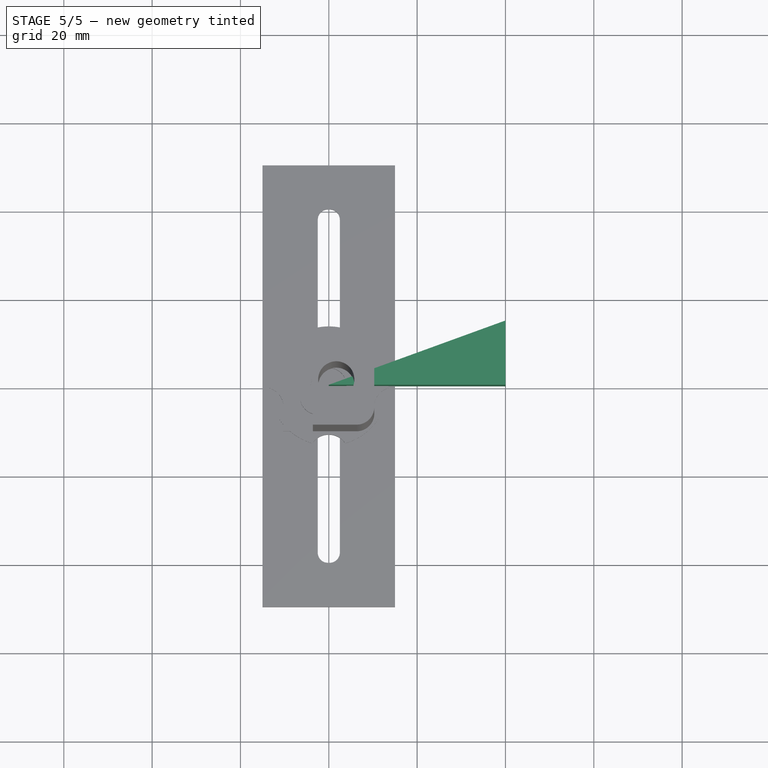
[diagram: stage 5 of 5 — top view after this stage's code; geometry added in this stage tinted green]
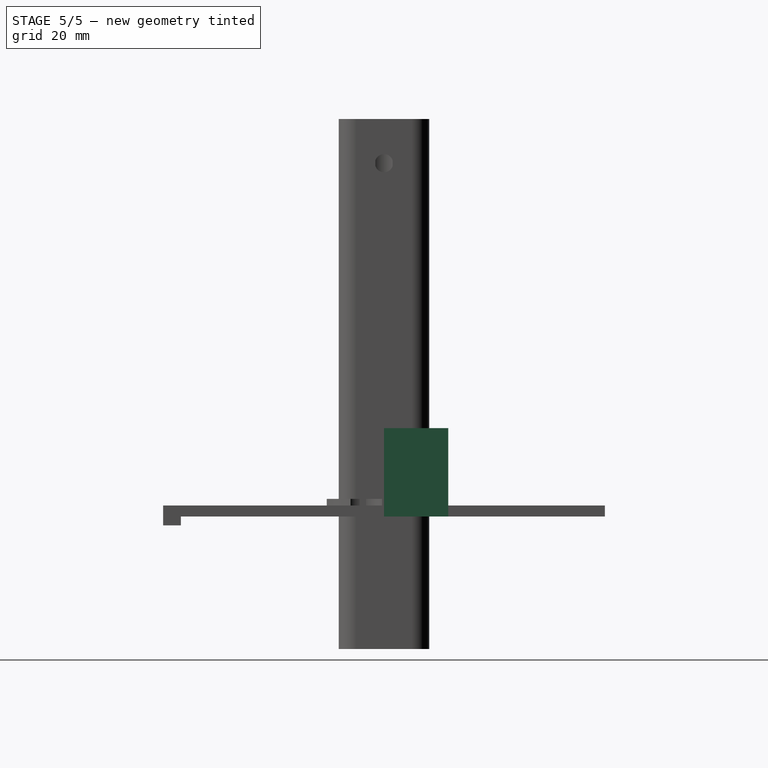
[diagram: stage 5 of 5 — right view after this stage's code; geometry added in this stage tinted green]
FEATURE [Sketcher::SketchObject] Sketch
  ArcFitTolerance = 1e-06
  AttachmentSupport = -> [XY_Plane001]
  FullyConstrained = true
  MakeInternals = false
  MapMode = 5
  sketch-geometry (3):
    g0: LineSegment StartX=0 StartY=0 StartZ=0 EndX=40 EndY=0 EndZ=0
    g1: LineSegment StartX=40 StartY=0 StartZ=0 EndX=40 EndY=14.5588 EndZ=0
    g2: LineSegment StartX=40 StartY=14.5588 StartZ=0 EndX=0 EndY=-1.8e-15 EndZ=0
  constraints (8):
    c: Coincident(g-1,g0)
    c: PointOnObject(g0,g-1)
    c: Coincident(g0,g1)
    c: Vertical(g1)
    c: Coincident(g1,g2)
    c: Coincident(g2,g0)
    c: Angle(g0,g2) = 0.349066
    c: DistanceX(g0,g0) = 40
FEATURE [PartDesign::Pad] Pad  label="20Pad"
  Direction = (0,0,1)
  Length = 20
  Length2 = 10
  Profile = -> Sketch
  ReferenceAxis = -> Sketch [N_Axis]
  Refine = true
  Suppressed = false
  Type = 0
FEATURE [PartDesign::Body] Body  label="20Anglebody"
  AllowCompound = false
  Group = -> [Sketch,Pad]
  Origin = -> Origin001
  Tip = -> Pad
FEATURE [App::Part] Part  label="20AnglePart"
  Group = -> [Body]
  Origin = -> Origin
FEATURE [Sketcher::SketchObject] Sketch001
  ArcFitTolerance = 1e-06
  AttachmentSupport = -> [XY_Plane003]
  FullyConstrained = true
  MakeInternals = false
  MapMode = 5
  sketch-geometry (3):
    g0: LineSegment StartX=0 StartY=3.6e-15 StartZ=0 EndX=40 EndY=0 EndZ=0
    g1: LineSegment StartX=40 StartY=0 StartZ=0 EndX=40 EndY=10.718 EndZ=0
    g2: LineSegment StartX=40 StartY=10.718 StartZ=0 EndX=0 EndY=3.6e-15 EndZ=0
  constraints (8):
    c: Coincident(g-1,g0)
    c: PointOnObject(g0,g-1)
    c: Coincident(g0,g1)
    c: Vertical(g1)
    c: Coincident(g1,g2)
    c: Coincident(g2,g0)
    c: DistanceX(g0,g0) = 40
    c: Angle(g0,g2) = 0.261799
FEATURE [PartDesign::Pad] Pad001
  Direction = (0,0,1)
  Length = 20
  Length2 = 10
  Profile = -> Sketch001
  ReferenceAxis = -> Sketch001 [N_Axis]
  Refine = true
  Suppressed = false
  Type = 0
FEATURE [PartDesign::Body] Body001  label="15AngleBody"
  AllowCompound = false
  Group = -> [Sketch001,Pad001]
  Origin = -> Origin003
  Tip = -> Pad001
FEATURE [App::Part] Part001  label="15AnglePart"
  Group = -> [Body001]
  Origin = -> Origin002
FEATURE [Sketcher::SketchObject] Sketch002
  ArcFitTolerance = 1e-06
  AttachmentSupport = -> [XY_Plane005]
  FullyConstrained = true
  MakeInternals = false
  MapMode = 5
  sketch-geometry (9):
    g0: LineSegment StartX=-10.3 StartY=10.25 StartZ=0 EndX=-10.3 EndY=-10.25 EndZ=0
    g1: LineSegment StartX=-10.3 StartY=-10.25 StartZ=0 EndX=6.3 EndY=-10.25 EndZ=0
    g2: LineSegment StartX=10.3 StartY=-6.25 StartZ=0 EndX=10.3 EndY=6.25 EndZ=0
    g3: LineSegment StartX=6.3 StartY=10.25 StartZ=0 EndX=-10.3 EndY=10.25 EndZ=0
    g4: Circle CenterX=1.7 CenterY=0 CenterZ=0 NormalX=0 NormalY=0 NormalZ=1 AngleXU=0 Radius=4.1
    g5: ArcOfCircle CenterX=6.3 CenterY=6.25 CenterZ=0 NormalX=0 NormalY=0 NormalZ=1 AngleXU=0 Radius=4 StartAngle=0 EndAngle=1.5708
    g6: GeomPoint [constr] X=10.3 Y=10.25 Z=0
    g7: ArcOfCircle CenterX=6.3 CenterY=-6.25 CenterZ=0 NormalX=0 NormalY=0 NormalZ=1 AngleXU=0 Radius=4 StartAngle=4.71239 EndAngle=6.28319
    g8: GeomPoint [constr] X=10.3 Y=-10.25 Z=0
  constraints (22):
    c: Coincident(g0,g1)
    c: Coincident(g3,g0)
    c: Vertical(g0)
    c: Vertical(g2)
    c: Horizontal(g1)
    c: Horizontal(g3)
    c: Distance(g0,g6) = 20.6
    c: Distance(g1,g3) = 20.5
    c: Symmetric(g6,g0,g-1)
    c: Diameter(g4) = 8.2
    c: PointOnObject(g4,g-1)
    c: DistanceX(g4,g8) = 8.6
    c: PointOnObject(g6,g3)
    c: PointOnObject(g6,g2)
    c: Tangent(g3,g5) = -1.5708
    c: Tangent(g2,g5) = -1.5708
    c: PointOnObject(g8,g2)
    c: PointOnObject(g8,g1)
    c: Tangent(g2,g7) = -1.5708
    c: Tangent(g1,g7) = -1.5708
    c: Radius(g5) = 4
    c: Radius(g7) = 4
FEATURE [PartDesign::Pad] Pad002  label="MainPad"
  Direction = (0,0,1)
  Length = 30
  Length2 = 10
  Profile = -> Sketch002
  ReferenceAxis = -> Sketch002 [N_Axis]
  Refine = true
  Suppressed = false
  Type = 0
FEATURE [Sketcher::SketchObject] Sketch003
  ArcFitTolerance = 1e-06
  AttachmentSupport = -> [Pad002]
  FullyConstrained = true
  MakeInternals = false
  MapMode = 5
  Placement = pos=(0,0,30) rot=(0,0,1;0rad)
  sketch-geometry (4):
    g0: LineSegment StartX=-10.3 StartY=10.25 StartZ=0 EndX=-10.3 EndY=-10.25 EndZ=0
    g1: LineSegment StartX=-10.3 StartY=-10.25 StartZ=0 EndX=-3.6 EndY=-10.25 EndZ=0
    g2: LineSegment StartX=-3.6 StartY=-10.25 StartZ=0 EndX=-3.6 EndY=10.25 EndZ=0
    g3: LineSegment StartX=-3.6 StartY=10.25 StartZ=0 EndX=-10.3 EndY=10.25 EndZ=0
  constraints (12):
    c: Coincident(g0,g1)
    c: Coincident(g1,g2)
    c: Coincident(g2,g3)
    c: Coincident(g3,g0)
    c: Vertical(g0)
    c: Vertical(g2)
    c: Horizontal(g1)
    c: Horizontal(g3)
    c: Distance(g0,g2) = 6.7
    c: Distance(g1,g3) = 20.5
    c: DistanceY(g-1,g2) = 10.25
    c: DistanceX(g0,g-1) = 10.3
FEATURE [PartDesign::Pocket] Pocket  label="GiantPocket"
  BaseFeature = -> Pad002
  Direction = (0,0,-1)
  Length = 28
  Length2 = 5
  Profile = -> Sketch003
  ReferenceAxis = -> Sketch003 [N_Axis]
  Refine = true
  Suppressed = false
  Type = 0
FEATURE [Sketcher::SketchObject] Sketch004
  ArcFitTolerance = 1e-06
  AttachmentSupport = -> [Pocket]
  FullyConstrained = true
  MakeInternals = false
  MapMode = 5
  Placement = pos=(0,0,2) rot=(0,0,1;0rad)
  sketch-geometry (4):
    g0: LineSegment StartX=-10.3 StartY=10.25 StartZ=0 EndX=-10.3 EndY=-10.25 EndZ=0
    g1: LineSegment StartX=-10.3 StartY=-10.25 StartZ=0 EndX=-8.8 EndY=-10.25 EndZ=0
    g2: LineSegment StartX=-8.8 StartY=-10.25 StartZ=0 EndX=-8.8 EndY=10.25 EndZ=0
    g3: LineSegment StartX=-8.8 StartY=10.25 StartZ=0 EndX=-10.3 EndY=10.25 EndZ=0
  constraints (12):
    c: Coincident(g0,g1)
    c: Coincident(g1,g2)
    c: Coincident(g2,g3)
    c: Coincident(g3,g0)
    c: Vertical(g0)
    c: Vertical(g2)
    c: Horizontal(g1)
    c: Horizontal(g3)
    c: Distance(g0,g2) = 1.5
    c: Distance(g1,g3) = 20.5
    c: DistanceY(g-1,g2) = 10.25
    c: DistanceX(g0,g-1) = 10.3
FEATURE [PartDesign::Pad] Pad003  label="LipPad"
  BaseFeature = -> Pocket
  Direction = (0,0,1)
  Length = 2
  Length2 = 10
  Profile = -> Sketch004
  ReferenceAxis = -> Sketch004 [N_Axis]
  Refine = true
  Suppressed = false
  Type = 0
FEATURE [Sketcher::SketchObject] Sketch005
  ArcFitTolerance = 1e-06
  AttachmentSupport = -> [Pad003]
  FullyConstrained = true
  MakeInternals = false
  MapMode = 5
  Placement = pos=(10.3,0,0) rot=(0.57735,0.57735,0.57735;2.0944rad)
  sketch-geometry (1):
    g0: Circle CenterX=0 CenterY=15 CenterZ=0 NormalX=0 NormalY=0 NormalZ=1 AngleXU=0 Radius=2.05
  constraints (3):
    c: Diameter(g0) = 4.1
    c: PointOnObject(g0,g-2)
    c: DistanceY(g-1,g0) = 15
FEATURE [PartDesign::Pocket] Pocket001  label="ScrewPocket"
  BaseFeature = -> Pad003
  Direction = (-1,0,0)
  Length = 5
  Length2 = 5
  Profile = -> Sketch005
  ReferenceAxis = -> Sketch005 [N_Axis]
  Refine = true
  Suppressed = false
  Type = 0
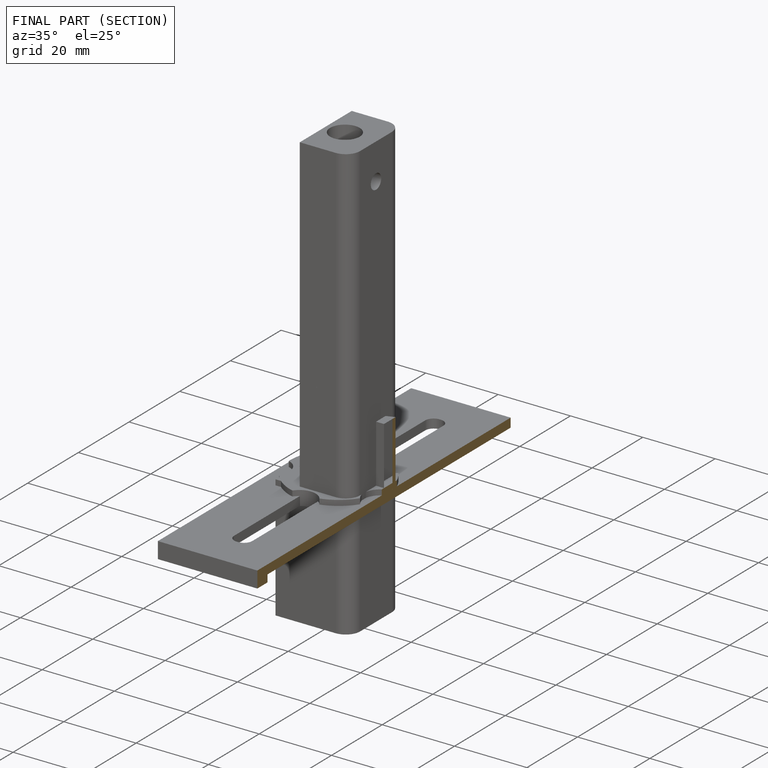
[diagram: finished part — half-section view (interior)]
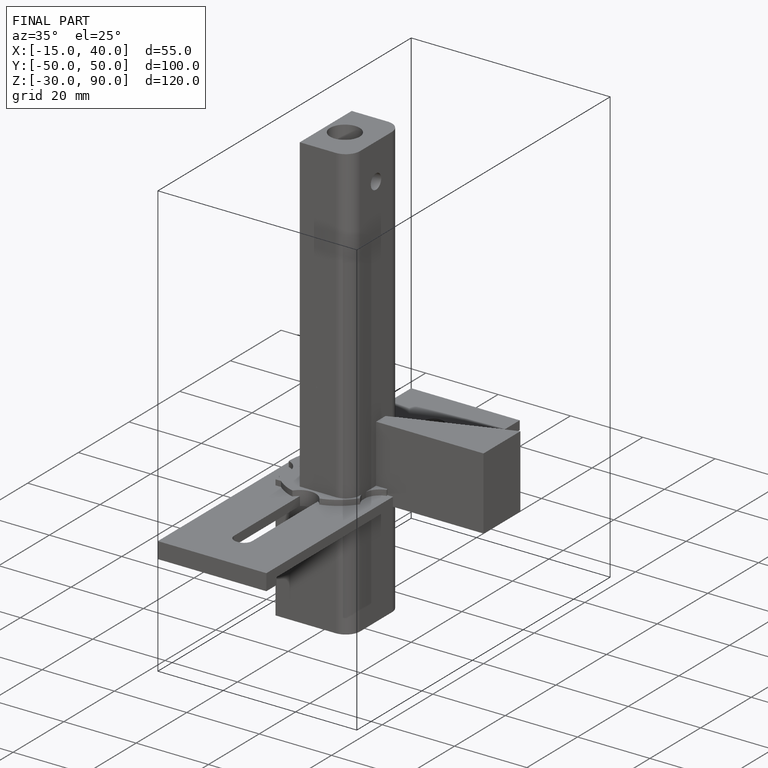
[diagram: finished part — iso view with bounding-box wireframe]
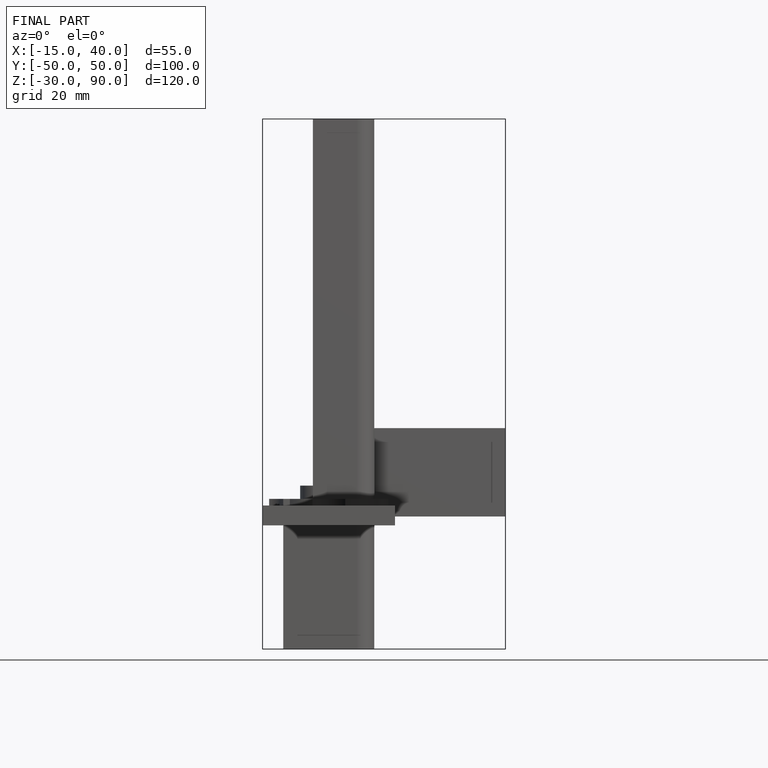
[diagram: finished part — front view with bounding-box wireframe]
